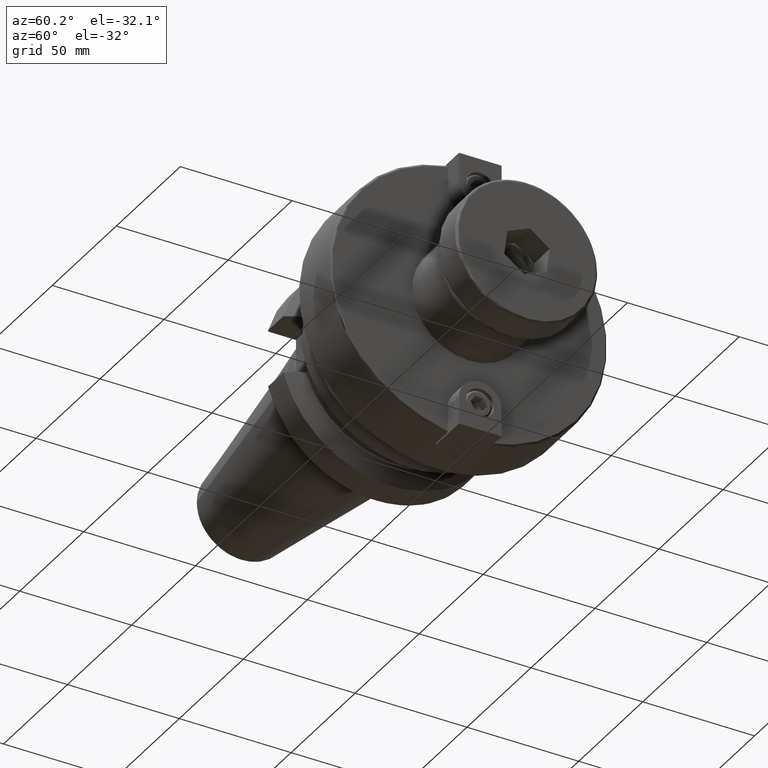
[diagram: clean part render]
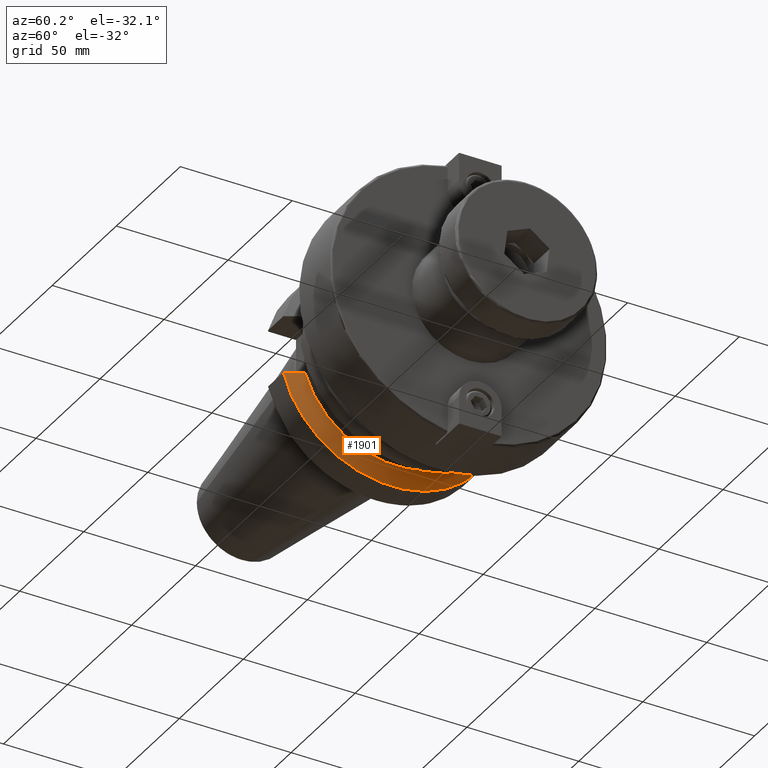
[diagram: same view with one face highlighted and labeled with its STEP entity id]
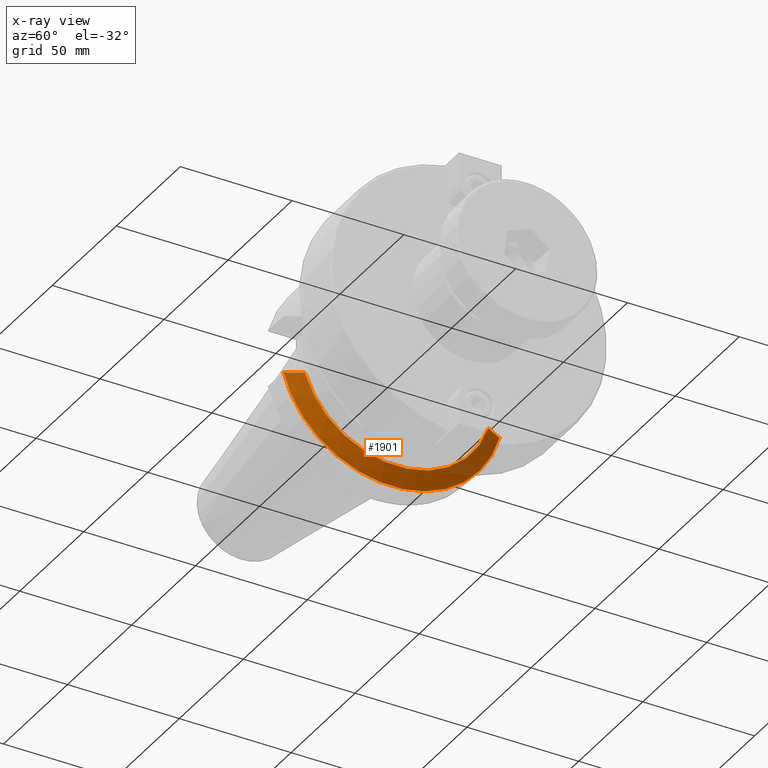
[diagram: x-ray of the same camera — body ghosted, the highlighted face saturated]
A machine part, auxiliary view. The second image highlights one B-rep face of the part: STEP entity #1901.
The next image is the same camera in x-ray: the body ghosted, the highlighted face saturated — about 18% of this face is hidden behind the body in this view.
In plain terms, the highlighted conical surface has half-angle 60.125 deg.
Its self-contained STEP definition (entity closure, byte-faithful):
#54=(
BOUNDED_CURVE()
B_SPLINE_CURVE(2,(#3248,#3249,#3250),.UNSPECIFIED.,.F.,.F.)
B_SPLINE_CURVE_WITH_KNOTS((3,3),(0.,0.834435209413224),.UNSPECIFIED.)
CURVE()
GEOMETRIC_REPRESENTATION_ITEM()
RATIONAL_B_SPLINE_CURVE((1.,1.003100982064,1.))
REPRESENTATION_ITEM('')
);
#55=(
BOUNDED_CURVE()
B_SPLINE_CURVE(2,(#3305,#3306,#3307),.UNSPECIFIED.,.F.,.F.)
B_SPLINE_CURVE_WITH_KNOTS((3,3),(0.,0.834435209413224),.UNSPECIFIED.)
CURVE()
GEOMETRIC_REPRESENTATION_ITEM()
RATIONAL_B_SPLINE_CURVE((1.,1.003100982064,1.))
REPRESENTATION_ITEM('')
);
#174=CIRCLE('',#2167,42.9809048402051);
#175=CIRCLE('',#2169,50.);
#259=CONICAL_SURFACE('',#2168,46.4904524201025,1.04937921276159);
#309=FACE_OUTER_BOUND('',#432,.T.);
#432=EDGE_LOOP('',(#1448,#1449,#1450,#1451));
#856=VERTEX_POINT('',#3245);
#857=VERTEX_POINT('',#3247);
#866=VERTEX_POINT('',#3299);
#867=VERTEX_POINT('',#3303);
#1065=EDGE_CURVE('',#857,#856,#54,.T.);
#1081=EDGE_CURVE('',#857,#866,#174,.T.);
#1083=EDGE_CURVE('',#856,#867,#175,.T.);
#1084=EDGE_CURVE('',#867,#866,#55,.T.);
#1448=ORIENTED_EDGE('',*,*,#1065,.T.);
#1449=ORIENTED_EDGE('',*,*,#1083,.T.);
#1450=ORIENTED_EDGE('',*,*,#1084,.T.);
#1451=ORIENTED_EDGE('',*,*,#1081,.F.);
#1901=ADVANCED_FACE('',(#309),#259,.T.);
#2167=AXIS2_PLACEMENT_3D('',#3300,#2555,#2556);
#2168=AXIS2_PLACEMENT_3D('',#3302,#2558,#2559);
#2169=AXIS2_PLACEMENT_3D('',#3304,#2560,#2561);
#2555=DIRECTION('center_axis',(1.,0.,0.));
#2556=DIRECTION('ref_axis',(0.,0.,-1.));
#2558=DIRECTION('center_axis',(-1.,0.,0.));
#2559=DIRECTION('ref_axis',(0.,1.,0.));
#2560=DIRECTION('center_axis',(1.,0.,0.));
#2561=DIRECTION('ref_axis',(0.,0.,-1.));
#3245=CARTESIAN_POINT('',(15.6679155870539,-48.320570153921,-12.85));
#3247=CARTESIAN_POINT('',(19.7,-41.0150665107685,-12.85));
#3248=CARTESIAN_POINT('Ctrl Pts',(19.7,-41.0150665107685,-12.85));
#3249=CARTESIAN_POINT('Ctrl Pts',(17.8488214944614,-44.3920734073185,-12.85));
#3250=CARTESIAN_POINT('Ctrl Pts',(15.6679155870539,-48.320570153921,-12.85));
#3299=CARTESIAN_POINT('',(19.7,41.0150665107685,-12.85));
#3300=CARTESIAN_POINT('Origin',(19.7,0.,0.));
#3302=CARTESIAN_POINT('Origin',(17.6839577935269,0.,0.));
#3303=CARTESIAN_POINT('',(15.6679155870539,48.320570153921,-12.85));
#3304=CARTESIAN_POINT('Origin',(15.6679155870539,0.,0.));
#3305=CARTESIAN_POINT('Ctrl Pts',(15.6679155870539,48.320570153921,-12.85));
#3306=CARTESIAN_POINT('Ctrl Pts',(17.8488214944614,44.3920734073185,-12.85));
#3307=CARTESIAN_POINT('Ctrl Pts',(19.7,41.0150665107685,-12.85));